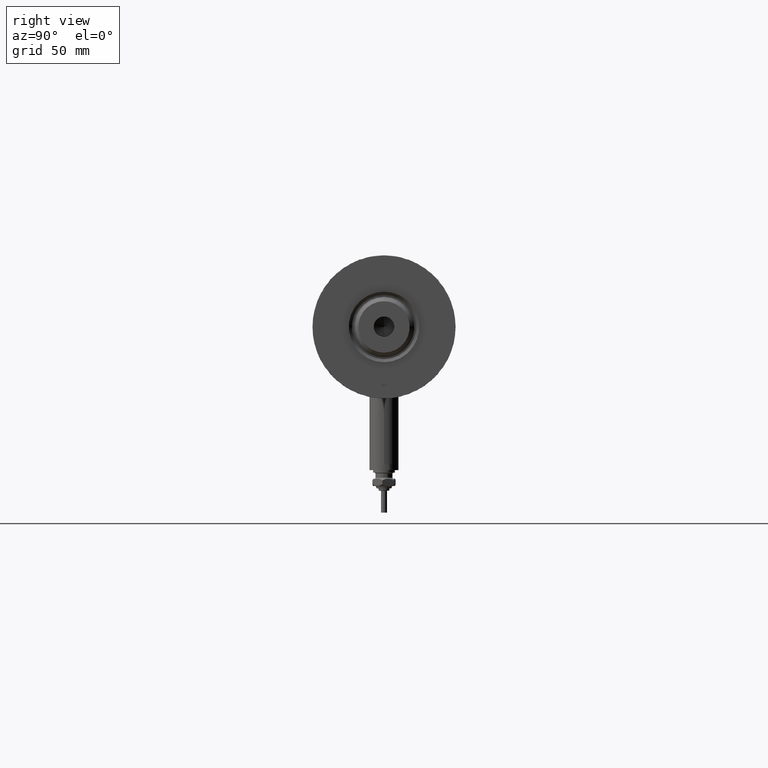
[diagram: clean part render]
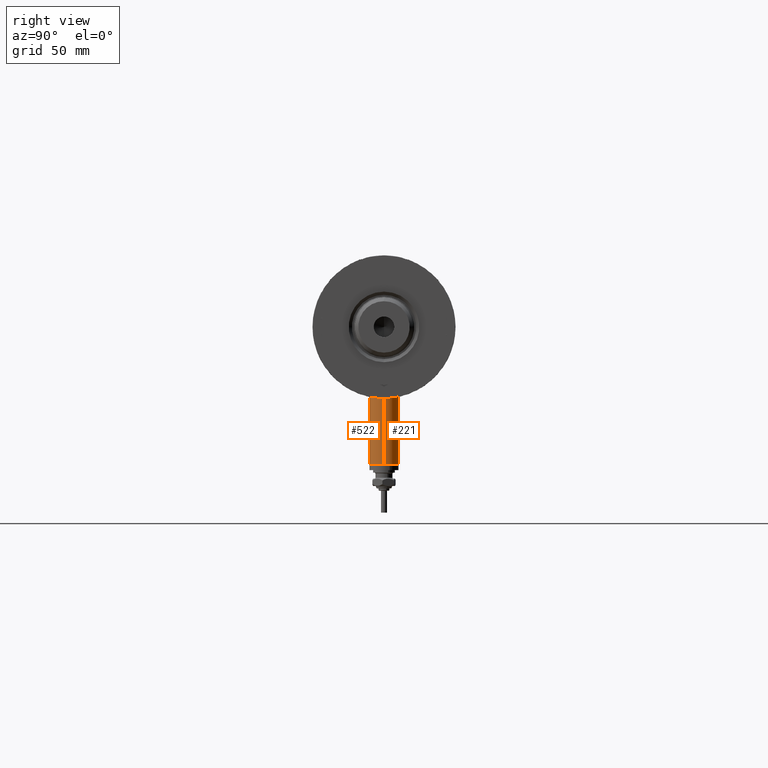
[diagram: same view with one multi-face feature highlighted, each face labeled with its STEP entity id]
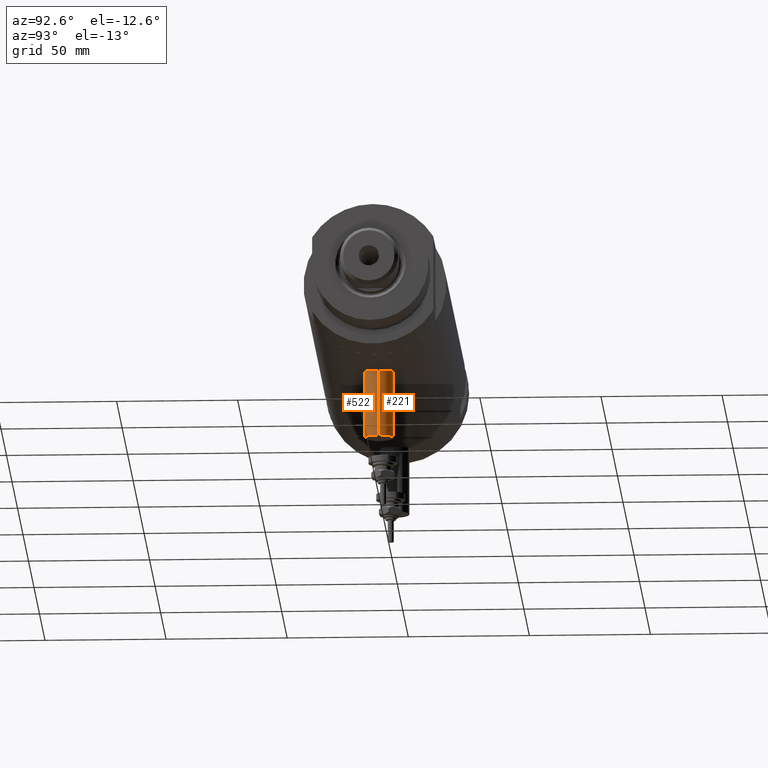
[diagram: same view with one multi-face feature highlighted, each face labeled with its STEP entity id]
A machine part, right view. The highlighted faces form ONE feature: a constant-radius fillet chain: 2 tangent blend faces with common blend radius 6 mm. The faces share edges in the B-rep.
A second angle (auxiliary view) of the same feature is appended — it is thin or edge-on in the first view.
Their STEP definitions:
[1] entity #221 (Cylinder):
#21 = AXIS2_PLACEMENT_3D ( 'NONE', #4008, #2213, #3125 ) ;
#105 = ORIENTED_EDGE ( 'NONE', *, *, #5128, .F. ) ;
#221 = ADVANCED_FACE ( 'NONE', ( #4002 ), #3610, .T. ) ;
#450 = CARTESIAN_POINT ( 'NONE',  ( -56.60000000000000142, 7.347880794884119736E-16, -60.29999999999999005 ) ) ;
#858 = DIRECTION ( 'NONE',  ( 0.000000000000000000, 0.000000000000000000, 1.000000000000000000 ) ) ;
#917 = VECTOR ( 'NONE', #3175, 1000.000000000000000 ) ;
#973 = ORIENTED_EDGE ( 'NONE', *, *, #2549, .T. ) ;
#1032 = VECTOR ( 'NONE', #4843, 1000.000000000000000 ) ;
#1132 = CARTESIAN_POINT ( 'NONE',  ( -28.30000000000000071, 0.000000000000000000, -72.29999999999999716 ) ) ;
#1232 = CARTESIAN_POINT ( 'NONE',  ( -56.60000000000000142, 0.000000000000000000, -72.29999999999999716 ) ) ;
#1233 = DIRECTION ( 'NONE',  ( -1.000000000000000000, 0.000000000000000000, 0.000000000000000000 ) ) ;
#1333 = CARTESIAN_POINT ( 'NONE',  ( -56.60000000000000142, 0.000000000000000000, -66.29999999999999716 ) ) ;
#1601 = EDGE_LOOP ( 'NONE', ( #4268, #5107, #973, #105 ) ) ;
#1720 = VERTEX_POINT ( 'NONE', #4959 ) ;
#2082 = AXIS2_PLACEMENT_3D ( 'NONE', #1333, #5354, #4873 ) ;
#2213 = DIRECTION ( 'NONE',  ( -1.000000000000000000, 0.000000000000000000, 0.000000000000000000 ) ) ;
#2549 = EDGE_CURVE ( 'NONE', #1720, #3591, #3832, .T. ) ;
#2620 = VERTEX_POINT ( 'NONE', #1232 ) ;
#2959 = EDGE_CURVE ( 'NONE', #3204, #2620, #3468, .T. ) ;
#3020 = CARTESIAN_POINT ( 'NONE',  ( -56.60000000000000142, 7.347880794884122694E-16, -60.29999999999999005 ) ) ;
#3125 = DIRECTION ( 'NONE',  ( 0.000000000000000000, 0.000000000000000000, 1.000000000000000000 ) ) ;
#3175 = DIRECTION ( 'NONE',  ( 1.000000000000000000, -0.000000000000000000, -0.000000000000000000 ) ) ;
#3204 = VERTEX_POINT ( 'NONE', #450 ) ;
#3468 = CIRCLE ( 'NONE', #5482, 6.000000000000005329 ) ;
#3591 = VERTEX_POINT ( 'NONE', #1132 ) ;
#3610 = CYLINDRICAL_SURFACE ( 'NONE', #2082, 6.000000000000005329 ) ;
#3832 = CIRCLE ( 'NONE', #21, 6.000000000000005329 ) ;
#3967 = LINE ( 'NONE', #4900, #917 ) ;
#4002 = FACE_OUTER_BOUND ( 'NONE', #1601, .T. ) ;
#4008 = CARTESIAN_POINT ( 'NONE',  ( -28.30000000000000071, 0.000000000000000000, -66.29999999999999716 ) ) ;
#4268 = ORIENTED_EDGE ( 'NONE', *, *, #2959, .F. ) ;
#4843 = DIRECTION ( 'NONE',  ( 1.000000000000000000, -0.000000000000000000, -0.000000000000000000 ) ) ;
#4873 = DIRECTION ( 'NONE',  ( 0.000000000000000000, 0.000000000000000000, -1.000000000000000000 ) ) ;
#4900 = CARTESIAN_POINT ( 'NONE',  ( -56.60000000000000142, 0.000000000000000000, -72.29999999999999716 ) ) ;
#4959 = CARTESIAN_POINT ( 'NONE',  ( -28.30000000000000071, 7.347880794884119736E-16, -60.29999999999999005 ) ) ;
#5107 = ORIENTED_EDGE ( 'NONE', *, *, #5656, .T. ) ;
#5128 = EDGE_CURVE ( 'NONE', #2620, #3591, #3967, .T. ) ;
#5291 = LINE ( 'NONE', #3020, #1032 ) ;
#5354 = DIRECTION ( 'NONE',  ( 1.000000000000000000, -0.000000000000000000, -0.000000000000000000 ) ) ;
#5413 = CARTESIAN_POINT ( 'NONE',  ( -56.60000000000000142, 0.000000000000000000, -66.29999999999999716 ) ) ;
#5482 = AXIS2_PLACEMENT_3D ( 'NONE', #5413, #1233, #858 ) ;
#5656 = EDGE_CURVE ( 'NONE', #3204, #1720, #5291, .T. ) ;
[2] entity #522 (Cylinder):
#450 = CARTESIAN_POINT ( 'NONE',  ( -56.60000000000000142, 7.347880794884119736E-16, -60.29999999999999005 ) ) ;
#522 = ADVANCED_FACE ( 'NONE', ( #1201 ), #3075, .T. ) ;
#902 = CARTESIAN_POINT ( 'NONE',  ( -28.30000000000000071, 0.000000000000000000, -66.29999999999999716 ) ) ;
#917 = VECTOR ( 'NONE', #3175, 1000.000000000000000 ) ;
#1032 = VECTOR ( 'NONE', #4843, 1000.000000000000000 ) ;
#1125 = DIRECTION ( 'NONE',  ( -1.000000000000000000, 0.000000000000000000, 0.000000000000000000 ) ) ;
#1132 = CARTESIAN_POINT ( 'NONE',  ( -28.30000000000000071, 0.000000000000000000, -72.29999999999999716 ) ) ;
#1201 = FACE_OUTER_BOUND ( 'NONE', #5124, .T. ) ;
#1232 = CARTESIAN_POINT ( 'NONE',  ( -56.60000000000000142, 0.000000000000000000, -72.29999999999999716 ) ) ;
#1242 = DIRECTION ( 'NONE',  ( -1.000000000000000000, 0.000000000000000000, 0.000000000000000000 ) ) ;
#1272 = EDGE_CURVE ( 'NONE', #3591, #1720, #3453, .T. ) ;
#1563 = ORIENTED_EDGE ( 'NONE', *, *, #5656, .F. ) ;
#1699 = DIRECTION ( 'NONE',  ( 0.000000000000000000, 0.000000000000000000, 1.000000000000000000 ) ) ;
#1720 = VERTEX_POINT ( 'NONE', #4959 ) ;
#1725 = AXIS2_PLACEMENT_3D ( 'NONE', #4024, #4052, #5379 ) ;
#1730 = AXIS2_PLACEMENT_3D ( 'NONE', #902, #1242, #1699 ) ;
#1800 = CIRCLE ( 'NONE', #5146, 6.000000000000005329 ) ;
#1939 = ORIENTED_EDGE ( 'NONE', *, *, #5128, .T. ) ;
#2620 = VERTEX_POINT ( 'NONE', #1232 ) ;
#2958 = DIRECTION ( 'NONE',  ( 0.000000000000000000, 0.000000000000000000, 1.000000000000000000 ) ) ;
#3020 = CARTESIAN_POINT ( 'NONE',  ( -56.60000000000000142, 7.347880794884122694E-16, -60.29999999999999005 ) ) ;
#3075 = CYLINDRICAL_SURFACE ( 'NONE', #1725, 6.000000000000005329 ) ;
#3175 = DIRECTION ( 'NONE',  ( 1.000000000000000000, -0.000000000000000000, -0.000000000000000000 ) ) ;
#3204 = VERTEX_POINT ( 'NONE', #450 ) ;
#3305 = ORIENTED_EDGE ( 'NONE', *, *, #1272, .T. ) ;
#3453 = CIRCLE ( 'NONE', #1730, 6.000000000000005329 ) ;
#3498 = CARTESIAN_POINT ( 'NONE',  ( -56.60000000000000142, 0.000000000000000000, -66.29999999999999716 ) ) ;
#3591 = VERTEX_POINT ( 'NONE', #1132 ) ;
#3967 = LINE ( 'NONE', #4900, #917 ) ;
#4024 = CARTESIAN_POINT ( 'NONE',  ( -56.60000000000000142, 0.000000000000000000, -66.29999999999999716 ) ) ;
#4052 = DIRECTION ( 'NONE',  ( 1.000000000000000000, -0.000000000000000000, -0.000000000000000000 ) ) ;
#4407 = ORIENTED_EDGE ( 'NONE', *, *, #5723, .F. ) ;
#4843 = DIRECTION ( 'NONE',  ( 1.000000000000000000, -0.000000000000000000, -0.000000000000000000 ) ) ;
#4900 = CARTESIAN_POINT ( 'NONE',  ( -56.60000000000000142, 0.000000000000000000, -72.29999999999999716 ) ) ;
#4959 = CARTESIAN_POINT ( 'NONE',  ( -28.30000000000000071, 7.347880794884119736E-16, -60.29999999999999005 ) ) ;
#5124 = EDGE_LOOP ( 'NONE', ( #1563, #4407, #1939, #3305 ) ) ;
#5128 = EDGE_CURVE ( 'NONE', #2620, #3591, #3967, .T. ) ;
#5146 = AXIS2_PLACEMENT_3D ( 'NONE', #3498, #1125, #2958 ) ;
#5291 = LINE ( 'NONE', #3020, #1032 ) ;
#5379 = DIRECTION ( 'NONE',  ( 0.000000000000000000, 0.000000000000000000, -1.000000000000000000 ) ) ;
#5656 = EDGE_CURVE ( 'NONE', #3204, #1720, #5291, .T. ) ;
#5723 = EDGE_CURVE ( 'NONE', #2620, #3204, #1800, .T. ) ;